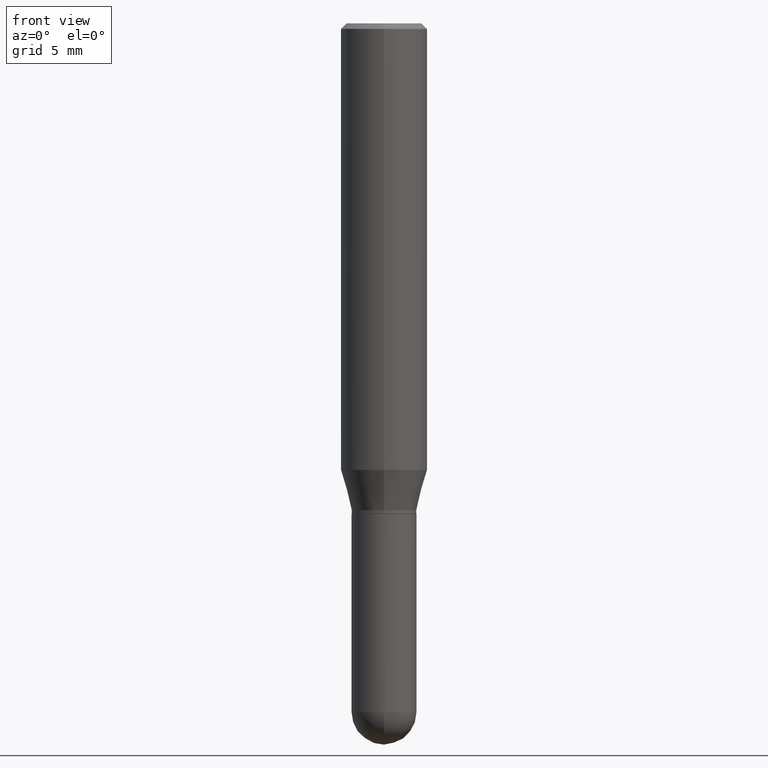
[diagram: clean part render]
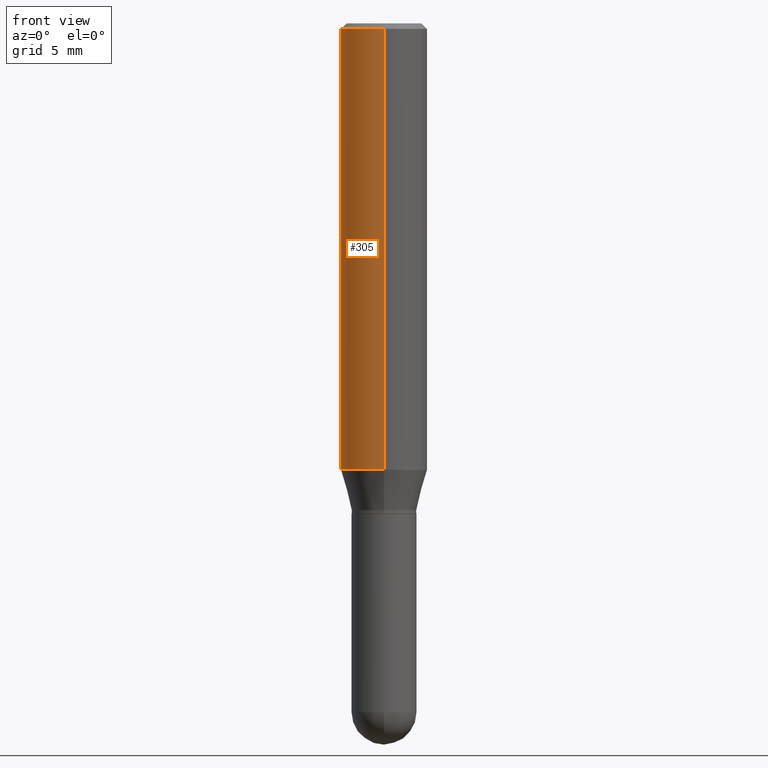
[diagram: same view with one face highlighted and labeled with its STEP entity id]
A machine part, front view. The second image highlights one B-rep face of the part: STEP entity #305.
In plain terms, the highlighted cylindrical surface (partial cylindrical patch) has radius 2.9997 mm, axis along (-0, 0, 1).
Its self-contained STEP definition (entity closure, byte-faithful):
#7 = ORIENTED_EDGE ( 'NONE', *, *, #63, .T. ) ;
#8 = CARTESIAN_POINT ( 'NONE',  ( 8.391509709327082724E-16, 0.1180999999999999411, -0.01500000000000055456 ) ) ;
#24 = CARTESIAN_POINT ( 'NONE',  ( 3.667969038719537049E-31, -5.237557353832276132E-17, -0.01500000000000014343 ) ) ;
#29 = EDGE_LOOP ( 'NONE', ( #132, #7, #329, #457 ) ) ;
#34 = AXIS2_PLACEMENT_3D ( 'NONE', #115, #271, #40 ) ;
#40 = DIRECTION ( 'NONE',  ( -6.982962677686265922E-15, -1.000000000000000000, 3.469747663417777397E-15 ) ) ;
#63 = EDGE_CURVE ( 'NONE', #452, #487, #443, .T. ) ;
#77 = DIRECTION ( 'NONE',  ( -2.445312692479667883E-29, 3.491704902554816982E-15, 1.000000000000000000 ) ) ;
#86 = CARTESIAN_POINT ( 'NONE',  ( 0.000000000000000000, 0.000000000000000000, 0.000000000000000000 ) ) ;
#95 = CARTESIAN_POINT ( 'NONE',  ( -8.246878922347182859E-16, -0.1181000000000042710, -1.218504501176717714 ) ) ;
#99 = AXIS2_PLACEMENT_3D ( 'NONE', #86, #244, #399 ) ;
#104 = EDGE_CURVE ( 'NONE', #487, #439, #473, .T. ) ;
#105 = CARTESIAN_POINT ( 'NONE',  ( 8.391509709326781971E-16, 0.1180999999999999966, -4.123703489917239120E-16 ) ) ;
#109 = DIRECTION ( 'NONE',  ( -2.445312692479667883E-29, 3.491704902554816982E-15, 1.000000000000000000 ) ) ;
#115 = CARTESIAN_POINT ( 'NONE',  ( 2.979624522571035712E-29, -4.254658140543858788E-15, -1.218504501176718158 ) ) ;
#124 = VERTEX_POINT ( 'NONE', #8 ) ;
#132 = ORIENTED_EDGE ( 'NONE', *, *, #394, .F. ) ;
#154 = VECTOR ( 'NONE', #77, 39.37007874015748143 ) ;
#159 = CIRCLE ( 'NONE', #225, 0.1180999999999999966 ) ;
#187 = LINE ( 'NONE', #105, #199 ) ;
#199 = VECTOR ( 'NONE', #109, 39.37007874015748143 ) ;
#225 = AXIS2_PLACEMENT_3D ( 'NONE', #24, #417, #463 ) ;
#242 = FACE_OUTER_BOUND ( 'NONE', #29, .T. ) ;
#244 = DIRECTION ( 'NONE',  ( -2.445312692479667883E-29, 3.491704902554816982E-15, 1.000000000000000000 ) ) ;
#263 = CARTESIAN_POINT ( 'NONE',  ( 8.391509709327078780E-16, 0.1180999999999957362, -1.218504501176718602 ) ) ;
#271 = DIRECTION ( 'NONE',  ( -2.445312692479667883E-29, 3.491704902554816982E-15, 1.000000000000000000 ) ) ;
#305 = ADVANCED_FACE ( 'NONE', ( #242 ), #363, .T. ) ;
#329 = ORIENTED_EDGE ( 'NONE', *, *, #104, .T. ) ;
#351 = CARTESIAN_POINT ( 'NONE',  ( -8.246878922347479668E-16, -0.1180999999999999966, 4.123703489917239120E-16 ) ) ;
#363 = CYLINDRICAL_SURFACE ( 'NONE', #99, 0.1180999999999999966 ) ;
#379 = EDGE_CURVE ( 'NONE', #124, #439, #159, .T. ) ;
#394 = EDGE_CURVE ( 'NONE', #452, #124, #187, .T. ) ;
#399 = DIRECTION ( 'NONE',  ( -6.982962677686265922E-15, -1.000000000000000000, 3.491704902554817376E-15 ) ) ;
#417 = DIRECTION ( 'NONE',  ( -2.445312692479667883E-29, 3.491704902554816982E-15, 1.000000000000000000 ) ) ;
#439 = VERTEX_POINT ( 'NONE', #497 ) ;
#443 = CIRCLE ( 'NONE', #34, 0.1180999999999999966 ) ;
#452 = VERTEX_POINT ( 'NONE', #263 ) ;
#457 = ORIENTED_EDGE ( 'NONE', *, *, #379, .F. ) ;
#463 = DIRECTION ( 'NONE',  ( -6.982962677686265922E-15, -1.000000000000000000, 3.487819265831411744E-15 ) ) ;
#473 = LINE ( 'NONE', #351, #154 ) ;
#487 = VERTEX_POINT ( 'NONE', #95 ) ;
#497 = CARTESIAN_POINT ( 'NONE',  ( -8.246878922347475723E-16, -0.1181000000000000522, -0.01499999999999973056 ) ) ;